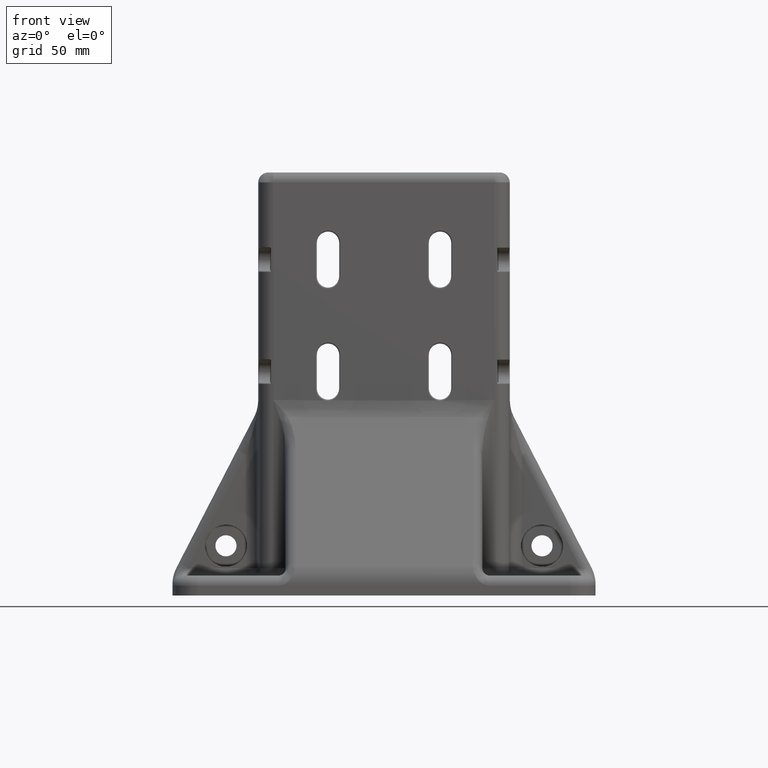
[diagram: clean part render]
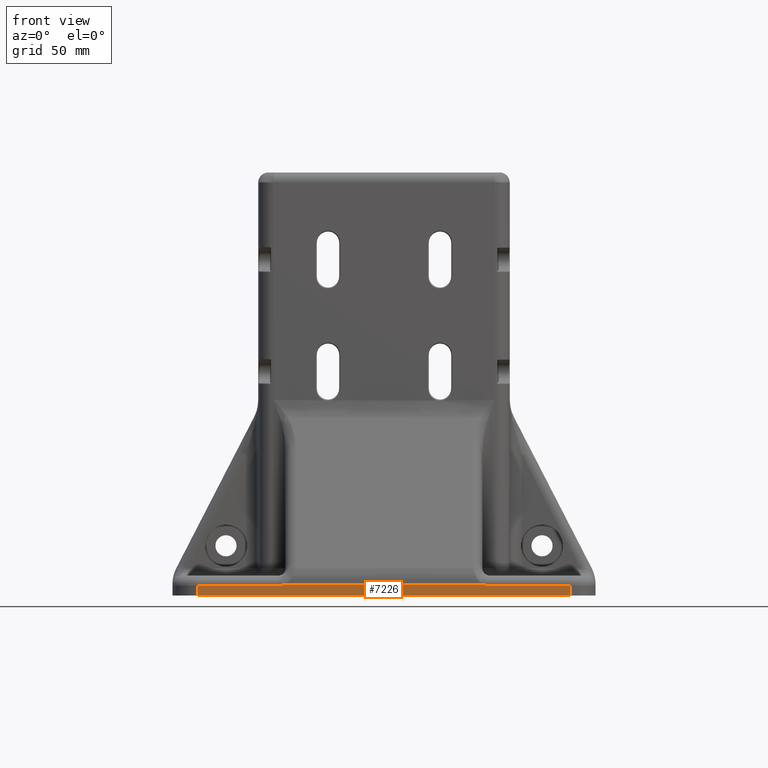
[diagram: same view with one face highlighted and labeled with its STEP entity id]
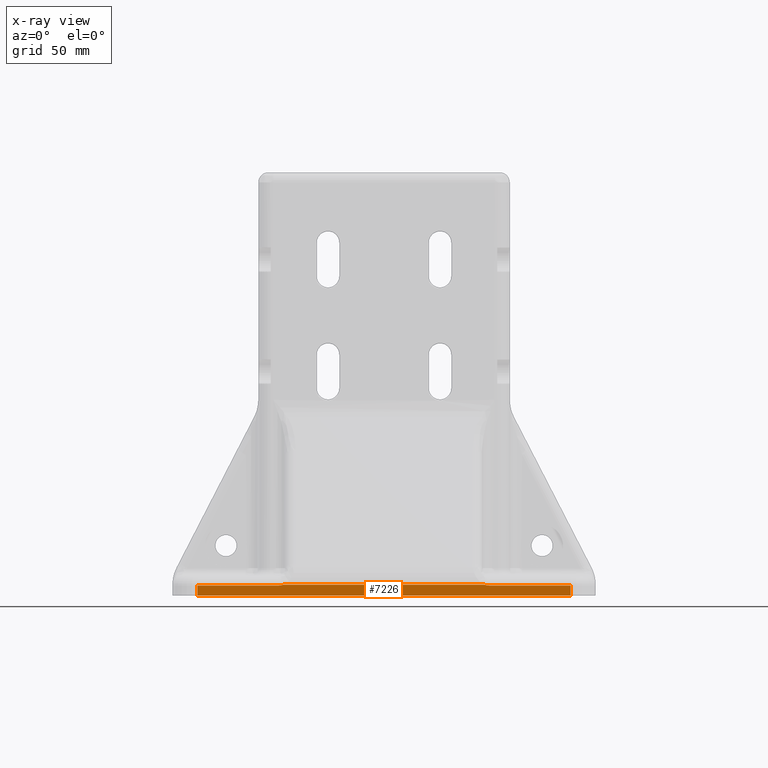
[diagram: x-ray of the same camera — body ghosted, the highlighted face saturated]
A machine part, front view. The second image highlights one B-rep face of the part: STEP entity #7226.
The next image is the same camera in x-ray: the body ghosted, the highlighted face saturated — about 0% of this face is hidden behind the body in this view.
In plain terms, the highlighted planar face has unit normal (0, -1, 0).
Its self-contained STEP definition (entity closure, byte-faithful):
#208=PLANE('',#8051);
#670=FACE_OUTER_BOUND('',#1130,.T.);
#1130=EDGE_LOOP('',(#6080,#6081,#6082,#6083,#6084,#6085,#6086,#6087));
#1611=LINE('',#14372,#2113);
#1665=LINE('',#14727,#2167);
#1712=LINE('',#14908,#2214);
#1713=LINE('',#14912,#2215);
#1714=LINE('',#14913,#2216);
#1715=LINE('',#14914,#2217);
#2113=VECTOR('',#9774,1000.);
#2167=VECTOR('',#9900,1000.);
#2214=VECTOR('',#10015,1000.);
#2215=VECTOR('',#10018,1000.);
#2216=VECTOR('',#10019,1000.);
#2217=VECTOR('',#10020,1000.);
#2686=CIRCLE('',#8052,7.);
#2687=CIRCLE('',#8053,7.);
#3279=VERTEX_POINT('',#14370);
#3280=VERTEX_POINT('',#14371);
#3358=VERTEX_POINT('',#14725);
#3407=VERTEX_POINT('',#14904);
#3408=VERTEX_POINT('',#14905);
#3409=VERTEX_POINT('',#14907);
#3410=VERTEX_POINT('',#14909);
#3411=VERTEX_POINT('',#14911);
#4185=EDGE_CURVE('',#3279,#3280,#1611,.T.);
#4272=EDGE_CURVE('',#3279,#3358,#1665,.T.);
#4344=EDGE_CURVE('',#3407,#3408,#2686,.T.);
#4345=EDGE_CURVE('',#3408,#3409,#1712,.T.);
#4346=EDGE_CURVE('',#3409,#3410,#2687,.T.);
#4347=EDGE_CURVE('',#3410,#3411,#1713,.T.);
#4348=EDGE_CURVE('',#3411,#3280,#1714,.T.);
#4349=EDGE_CURVE('',#3358,#3407,#1715,.T.);
#6080=ORIENTED_EDGE('',*,*,#4344,.T.);
#6081=ORIENTED_EDGE('',*,*,#4345,.T.);
#6082=ORIENTED_EDGE('',*,*,#4346,.T.);
#6083=ORIENTED_EDGE('',*,*,#4347,.T.);
#6084=ORIENTED_EDGE('',*,*,#4348,.T.);
#6085=ORIENTED_EDGE('',*,*,#4185,.F.);
#6086=ORIENTED_EDGE('',*,*,#4272,.T.);
#6087=ORIENTED_EDGE('',*,*,#4349,.T.);
#7226=ADVANCED_FACE('',(#670),#208,.T.);
#8051=AXIS2_PLACEMENT_3D('',#14903,#10011,#10012);
#8052=AXIS2_PLACEMENT_3D('',#14906,#10013,#10014);
#8053=AXIS2_PLACEMENT_3D('',#14910,#10016,#10017);
#9774=DIRECTION('',(-1.,-2.39187444552253E-16,0.));
#9900=DIRECTION('',(0.,0.,1.));
#10011=DIRECTION('center_axis',(2.39187444552254E-16,-1.,0.));
#10012=DIRECTION('ref_axis',(0.,0.,1.));
#10013=DIRECTION('center_axis',(-2.39187444552254E-16,1.,2.46519032881566E-32));
#10014=DIRECTION('ref_axis',(5.89642575084348E-48,-2.46519032881566E-32,
1.));
#10015=DIRECTION('',(-1.,-2.39187444552253E-16,0.));
#10016=DIRECTION('center_axis',(-2.39187444552254E-16,1.,2.46519032881566E-32));
#10017=DIRECTION('ref_axis',(5.89642575084348E-48,-2.46519032881566E-32,
1.));
#10018=DIRECTION('',(-1.,-2.39187444552253E-16,0.));
#10019=DIRECTION('',(0.,0.,-1.));
#10020=DIRECTION('',(-1.,-2.39187444552253E-16,0.));
#14370=CARTESIAN_POINT('',(52.4718944343887,-109.452796603166,-2.04697370165263E-11));
#14371=CARTESIAN_POINT('',(-97.5281055656114,-109.452796603166,-2.04697370165263E-11));
#14372=CARTESIAN_POINT('',(-107.528105565611,-109.452796603166,-2.04697370165263E-11));
#14725=CARTESIAN_POINT('',(52.4718944343887,-109.452796603166,3.99999999997953));
#14727=CARTESIAN_POINT('',(52.4718944343887,-109.452796603166,7.99999999997953));
#14903=CARTESIAN_POINT('Origin',(-107.528105565611,-109.452796603166,7.99999999997953));
#14904=CARTESIAN_POINT('',(19.9718944343886,-109.452796603166,3.99999999997953));
#14905=CARTESIAN_POINT('',(17.7414122274958,-109.452796603166,4.36487007474562));
#14906=CARTESIAN_POINT('Origin',(19.9718944343887,-109.452796603166,10.9999999999795));
#14907=CARTESIAN_POINT('',(-62.7976233587186,-109.452796603166,4.36487007474562));
#14908=CARTESIAN_POINT('',(-58.7035502452746,-109.452796603166,4.36487007474562));
#14909=CARTESIAN_POINT('',(-65.0281055656114,-109.452796603166,3.99999999997953));
#14910=CARTESIAN_POINT('Origin',(-65.0281055656114,-109.452796603166,10.9999999999795));
#14911=CARTESIAN_POINT('',(-97.5281055656114,-109.452796603166,3.99999999997953));
#14912=CARTESIAN_POINT('',(-97.5281055656114,-109.452796603166,3.99999999997953));
#14913=CARTESIAN_POINT('',(-97.5281055656114,-109.452796603166,7.99999999997953));
#14914=CARTESIAN_POINT('',(-107.528105565611,-109.452796603166,3.99999999997953));